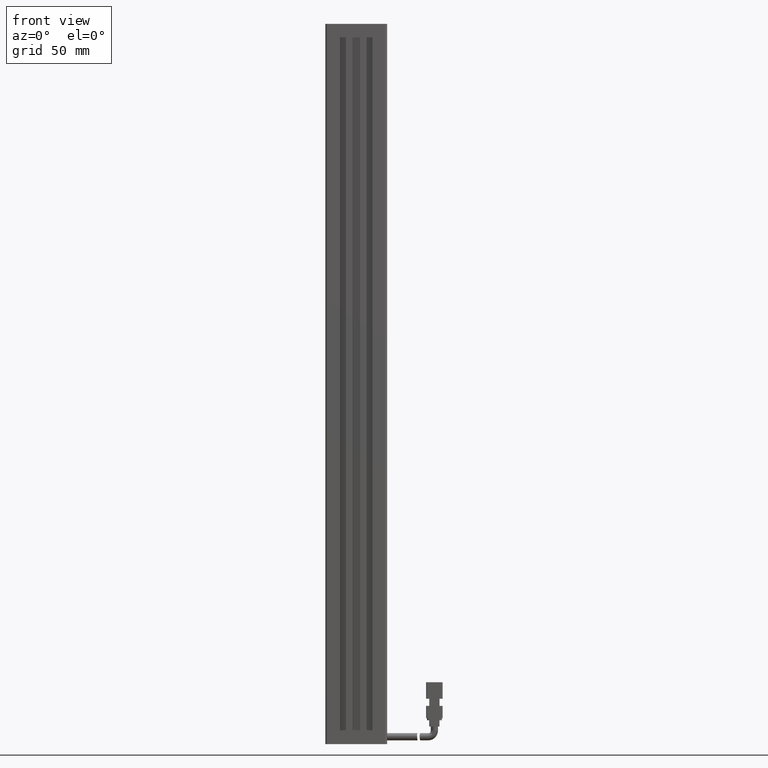
[diagram: clean part render]
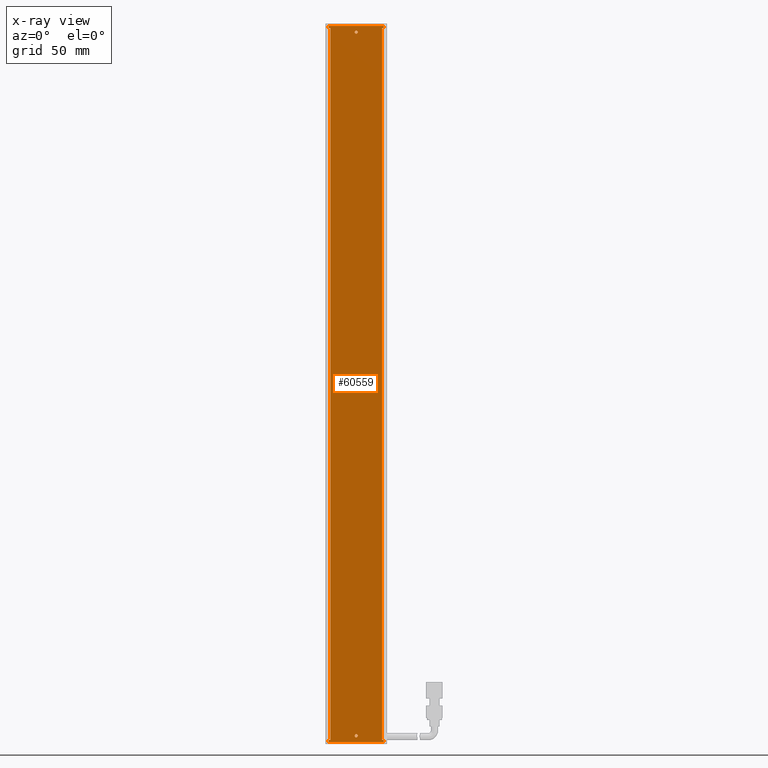
[diagram: x-ray — body ghosted, one internal face saturated and labeled with its STEP entity id]
A machine part, front view, then the same camera in x-ray: the body is ghosted and one INTERNAL B-rep face — a face not visible from any outside direction — is saturated and labeled: STEP entity #60559.
In plain terms, the highlighted planar face has unit normal (-0, 1, 0).
Its self-contained STEP definition (entity closure, byte-faithful):
#108 = AXIS2_PLACEMENT_3D ( 'NONE', #62833, #31655, #367 ) ;
#326 = EDGE_CURVE ( 'NONE', #44605, #55246, #21286, .T. ) ;
#365 = EDGE_CURVE ( 'NONE', #682, #49023, #63641, .T. ) ;
#367 = DIRECTION ( 'NONE',  ( 0.0000000000000000000, 0.0000000000000000000, 1.000000000000000000 ) ) ;
#425 = FACE_BOUND ( 'NONE', #21921, .T. ) ;
#682 = VERTEX_POINT ( 'NONE', #56365 ) ;
#1080 = EDGE_CURVE ( 'NONE', #682, #27360, #6263, .T. ) ;
#2448 = CARTESIAN_POINT ( 'NONE',  ( 40.92537974683542500, 32.19594479660386800, -288.0000000000000600 ) ) ;
#3001 = ORIENTED_EDGE ( 'NONE', *, *, #50860, .F. ) ;
#3261 = CARTESIAN_POINT ( 'NONE',  ( 40.92537974683541800, 32.19594479660386100, 56.00000000000005000 ) ) ;
#4709 = DIRECTION ( 'NONE',  ( -1.000000000000000000, -0.0000000000000000000, 0.0000000000000000000 ) ) ;
#5393 = CARTESIAN_POINT ( 'NONE',  ( 27.52537974683538000, 32.19594479660386100, 59.00000000000005000 ) ) ;
#6263 = LINE ( 'NONE', #7124, #32367 ) ;
#7115 = CIRCLE ( 'NONE', #28818, 0.7499999999999729100 ) ;
#7124 = CARTESIAN_POINT ( 'NONE',  ( 27.52537974683538000, 32.19594479660386100, 59.00000000000005000 ) ) ;
#7812 = DIRECTION ( 'NONE',  ( -0.0000000000000000000, -1.000000000000000000, -0.0000000000000000000 ) ) ;
#8419 = VERTEX_POINT ( 'NONE', #48173 ) ;
#8422 = DIRECTION ( 'NONE',  ( 1.000000000000000000, 0.0000000000000000000, -0.0000000000000000000 ) ) ;
#8490 = ORIENTED_EDGE ( 'NONE', *, *, #47933, .T. ) ;
#8548 = DIRECTION ( 'NONE',  ( 0.0000000000000000000, 0.0000000000000000000, 1.000000000000000000 ) ) ;
#9418 = EDGE_CURVE ( 'NONE', #11055, #67459, #51236, .T. ) ;
#9602 = VECTOR ( 'NONE', #19851, 1000.000000000000000 ) ;
#9888 = LINE ( 'NONE', #43370, #61997 ) ;
#10474 = CARTESIAN_POINT ( 'NONE',  ( 28.42537974683542100, 32.19594479660386800, -288.0000000000000600 ) ) ;
#10705 = DIRECTION ( 'NONE',  ( -1.000000000000000000, -0.0000000000000000000, 5.551115123125781500E-017 ) ) ;
#11055 = VERTEX_POINT ( 'NONE', #22298 ) ;
#11160 = EDGE_CURVE ( 'NONE', #49023, #17031, #58791, .T. ) ;
#13914 = AXIS2_PLACEMENT_3D ( 'NONE', #50061, #18892, #55287 ) ;
#14139 = ORIENTED_EDGE ( 'NONE', *, *, #365, .T. ) ;
#14659 = CARTESIAN_POINT ( 'NONE',  ( 54.32537974683541600, 32.19594479660386100, 59.00000000000005000 ) ) ;
#16041 = EDGE_CURVE ( 'NONE', #29607, #54694, #65655, .T. ) ;
#17031 = VERTEX_POINT ( 'NONE', #10474 ) ;
#17321 = ORIENTED_EDGE ( 'NONE', *, *, #11160, .T. ) ;
#18730 = CARTESIAN_POINT ( 'NONE',  ( 27.52537974683541200, 32.19594479660386100, 59.00000000000005000 ) ) ;
#18892 = DIRECTION ( 'NONE',  ( -0.0000000000000000000, 1.000000000000000000, 0.0000000000000000000 ) ) ;
#19307 = EDGE_CURVE ( 'NONE', #51924, #33954, #23669, .T. ) ;
#19811 = ORIENTED_EDGE ( 'NONE', *, *, #43852, .F. ) ;
#19851 = DIRECTION ( 'NONE',  ( -5.551115123125781500E-017, -0.0000000000000000000, -1.000000000000000000 ) ) ;
#21286 = LINE ( 'NONE', #2448, #35150 ) ;
#21921 = EDGE_LOOP ( 'NONE', ( #23378, #56547 ) ) ;
#22284 = CARTESIAN_POINT ( 'NONE',  ( 54.32537974683541600, 32.19594479660386100, 59.00000000000005000 ) ) ;
#22298 = CARTESIAN_POINT ( 'NONE',  ( 54.32537974683537400, 32.19594479660386100, -289.0000000000000000 ) ) ;
#22405 = CARTESIAN_POINT ( 'NONE',  ( 40.92537974683536100, 32.19594479660386100, -286.0000000000000000 ) ) ;
#22495 = VECTOR ( 'NONE', #27533, 1000.000000000000000 ) ;
#23095 = EDGE_CURVE ( 'NONE', #27360, #29607, #35130, .T. ) ;
#23219 = CARTESIAN_POINT ( 'NONE',  ( 27.52537974683535900, 32.19594479660386800, -288.0000000000000600 ) ) ;
#23378 = ORIENTED_EDGE ( 'NONE', *, *, #61960, .F. ) ;
#23478 = CARTESIAN_POINT ( 'NONE',  ( 54.32537974683540200, 32.19594479660386100, -288.0000000000000600 ) ) ;
#23669 = CIRCLE ( 'NONE', #63718, 0.7500000000000006700 ) ;
#24155 = AXIS2_PLACEMENT_3D ( 'NONE', #3261, #39820, #8548 ) ;
#24616 = LINE ( 'NONE', #35950, #52302 ) ;
#24914 = EDGE_CURVE ( 'NONE', #55246, #11055, #52790, .T. ) ;
#25472 = EDGE_CURVE ( 'NONE', #67459, #62691, #45232, .T. ) ;
#25476 = ORIENTED_EDGE ( 'NONE', *, *, #25472, .F. ) ;
#25525 = CARTESIAN_POINT ( 'NONE',  ( 53.42537974683542500, 32.19594479660386100, -288.0000000000000600 ) ) ;
#26390 = DIRECTION ( 'NONE',  ( 5.551115123125781500E-017, 0.0000000000000000000, 1.000000000000000000 ) ) ;
#26512 = ORIENTED_EDGE ( 'NONE', *, *, #46789, .T. ) ;
#26975 = EDGE_LOOP ( 'NONE', ( #44153, #19811 ) ) ;
#27360 = VERTEX_POINT ( 'NONE', #18730 ) ;
#27533 = DIRECTION ( 'NONE',  ( -5.551115123125781500E-017, -0.0000000000000000000, -1.000000000000000000 ) ) ;
#27658 = DIRECTION ( 'NONE',  ( 0.0000000000000000000, 0.0000000000000000000, 1.000000000000000000 ) ) ;
#27768 = CARTESIAN_POINT ( 'NONE',  ( 40.92537974683541800, 32.19594479660386100, 55.25000000000005000 ) ) ;
#28218 = FACE_OUTER_BOUND ( 'NONE', #50007, .T. ) ;
#28408 = DIRECTION ( 'NONE',  ( -0.0000000000000000000, -0.0000000000000000000, -1.000000000000000000 ) ) ;
#28818 = AXIS2_PLACEMENT_3D ( 'NONE', #22405, #58790, #27658 ) ;
#29607 = VERTEX_POINT ( 'NONE', #39203 ) ;
#31317 = DIRECTION ( 'NONE',  ( 1.000000000000000000, -0.0000000000000000000, 0.0000000000000000000 ) ) ;
#31357 = VECTOR ( 'NONE', #26390, 1000.000000000000000 ) ;
#31655 = DIRECTION ( 'NONE',  ( -0.0000000000000000000, -1.000000000000000000, -0.0000000000000000000 ) ) ;
#32367 = VECTOR ( 'NONE', #38403, 1000.000000000000000 ) ;
#33155 = ORIENTED_EDGE ( 'NONE', *, *, #1080, .F. ) ;
#33701 = DIRECTION ( 'NONE',  ( 1.000000000000000000, 0.0000000000000000000, 0.0000000000000000000 ) ) ;
#33954 = VERTEX_POINT ( 'NONE', #27768 ) ;
#34780 = VERTEX_POINT ( 'NONE', #52002 ) ;
#35130 = LINE ( 'NONE', #65361, #45736 ) ;
#35150 = VECTOR ( 'NONE', #33701, 1000.000000000000000 ) ;
#35950 = CARTESIAN_POINT ( 'NONE',  ( 40.92537974683542500, 32.19594479660386800, -288.0000000000000600 ) ) ;
#36068 = VERTEX_POINT ( 'NONE', #43678 ) ;
#36419 = ORIENTED_EDGE ( 'NONE', *, *, #16041, .F. ) ;
#37251 = VECTOR ( 'NONE', #31317, 1000.000000000000000 ) ;
#37432 = VECTOR ( 'NONE', #10705, 1000.000000000000000 ) ;
#38403 = DIRECTION ( 'NONE',  ( 5.551115123125781500E-017, 0.0000000000000000000, 1.000000000000000000 ) ) ;
#39096 = CARTESIAN_POINT ( 'NONE',  ( 40.92537974683541800, 32.19594479660386100, 56.00000000000005000 ) ) ;
#39203 = CARTESIAN_POINT ( 'NONE',  ( 54.32537974683541600, 32.19594479660386100, 59.00000000000005000 ) ) ;
#39700 = CARTESIAN_POINT ( 'NONE',  ( 40.92537974683542500, 32.19594479660386800, 58.00000000000000700 ) ) ;
#39791 = CARTESIAN_POINT ( 'NONE',  ( 54.32537974683541600, 32.19594479660386100, 58.00000000000000700 ) ) ;
#39820 = DIRECTION ( 'NONE',  ( -0.0000000000000000000, -1.000000000000000000, -0.0000000000000000000 ) ) ;
#41616 = CARTESIAN_POINT ( 'NONE',  ( 25.92537974683541800, 32.19594479660386100, 58.00000000000000700 ) ) ;
#42503 = VECTOR ( 'NONE', #8422, 1000.000000000000000 ) ;
#43370 = CARTESIAN_POINT ( 'NONE',  ( 53.42537974683542500, 32.19594479660386800, 60.00000000000001400 ) ) ;
#43678 = CARTESIAN_POINT ( 'NONE',  ( 53.42537974683542500, 32.19594479660386800, 58.00000000000000700 ) ) ;
#43852 = EDGE_CURVE ( 'NONE', #33954, #51924, #51820, .T. ) ;
#44153 = ORIENTED_EDGE ( 'NONE', *, *, #19307, .F. ) ;
#44288 = DIRECTION ( 'NONE',  ( 0.0000000000000000000, 0.0000000000000000000, 1.000000000000000000 ) ) ;
#44605 = VERTEX_POINT ( 'NONE', #25525 ) ;
#44675 = DIRECTION ( 'NONE',  ( 1.000000000000000000, 0.0000000000000000000, -5.551115123125781500E-017 ) ) ;
#44829 = CIRCLE ( 'NONE', #108, 0.7499999999999729100 ) ;
#45232 = LINE ( 'NONE', #5393, #31357 ) ;
#45736 = VECTOR ( 'NONE', #44675, 1000.000000000000000 ) ;
#46052 = CARTESIAN_POINT ( 'NONE',  ( 27.52537974683535900, 32.19594479660386100, -289.0000000000000000 ) ) ;
#46789 = EDGE_CURVE ( 'NONE', #36068, #54694, #51074, .T. ) ;
#46912 = ORIENTED_EDGE ( 'NONE', *, *, #23095, .F. ) ;
#47933 = EDGE_CURVE ( 'NONE', #17031, #62691, #24616, .T. ) ;
#48173 = CARTESIAN_POINT ( 'NONE',  ( 40.92537974683536100, 32.19594479660386100, -285.2500000000000000 ) ) ;
#49023 = VERTEX_POINT ( 'NONE', #57436 ) ;
#50007 = EDGE_LOOP ( 'NONE', ( #65463, #3001, #26512, #36419, #46912, #33155, #14139, #17321, #8490, #25476, #58053, #63203 ) ) ;
#50061 = CARTESIAN_POINT ( 'NONE',  ( 54.32537974683541600, 32.19594479660386100, 59.00000000000005000 ) ) ;
#50860 = EDGE_CURVE ( 'NONE', #36068, #44605, #9888, .T. ) ;
#51074 = LINE ( 'NONE', #41616, #37251 ) ;
#51236 = LINE ( 'NONE', #52125, #37432 ) ;
#51820 = CIRCLE ( 'NONE', #24155, 0.7500000000000006700 ) ;
#51924 = VERTEX_POINT ( 'NONE', #59834 ) ;
#52002 = CARTESIAN_POINT ( 'NONE',  ( 40.92537974683536100, 32.19594479660386100, -286.7499999999999400 ) ) ;
#52125 = CARTESIAN_POINT ( 'NONE',  ( 54.32537974683540900, 32.19594479660386100, -289.0000000000000000 ) ) ;
#52302 = VECTOR ( 'NONE', #4709, 1000.000000000000000 ) ;
#52790 = LINE ( 'NONE', #14659, #9602 ) ;
#54264 = FACE_BOUND ( 'NONE', #26975, .T. ) ;
#54367 = CARTESIAN_POINT ( 'NONE',  ( 28.42537974683542100, 32.19594479660386800, 60.00000000000001400 ) ) ;
#54694 = VERTEX_POINT ( 'NONE', #39791 ) ;
#55066 = PLANE ( 'NONE',  #13914 ) ;
#55246 = VERTEX_POINT ( 'NONE', #23478 ) ;
#55287 = DIRECTION ( 'NONE',  ( 5.551115123125781500E-017, 0.0000000000000000000, 1.000000000000000000 ) ) ;
#56365 = CARTESIAN_POINT ( 'NONE',  ( 27.52537974683535900, 32.19594479660386800, 58.00000000000000700 ) ) ;
#56547 = ORIENTED_EDGE ( 'NONE', *, *, #58918, .F. ) ;
#57162 = VECTOR ( 'NONE', #28408, 1000.000000000000000 ) ;
#57436 = CARTESIAN_POINT ( 'NONE',  ( 28.42537974683542100, 32.19594479660386100, 58.00000000000000700 ) ) ;
#58053 = ORIENTED_EDGE ( 'NONE', *, *, #9418, .F. ) ;
#58790 = DIRECTION ( 'NONE',  ( -0.0000000000000000000, -1.000000000000000000, -0.0000000000000000000 ) ) ;
#58791 = LINE ( 'NONE', #54367, #57162 ) ;
#58918 = EDGE_CURVE ( 'NONE', #34780, #8419, #44829, .T. ) ;
#59023 = DIRECTION ( 'NONE',  ( -0.0000000000000000000, -0.0000000000000000000, -1.000000000000000000 ) ) ;
#59834 = CARTESIAN_POINT ( 'NONE',  ( 40.92537974683541800, 32.19594479660386100, 56.75000000000005000 ) ) ;
#60559 = ADVANCED_FACE ( 'NONE', ( #28218, #54264, #425 ), #55066, .F. ) ;
#61960 = EDGE_CURVE ( 'NONE', #8419, #34780, #7115, .T. ) ;
#61997 = VECTOR ( 'NONE', #59023, 1000.000000000000000 ) ;
#62691 = VERTEX_POINT ( 'NONE', #23219 ) ;
#62833 = CARTESIAN_POINT ( 'NONE',  ( 40.92537974683536100, 32.19594479660386100, -286.0000000000000000 ) ) ;
#63203 = ORIENTED_EDGE ( 'NONE', *, *, #24914, .F. ) ;
#63641 = LINE ( 'NONE', #39700, #42503 ) ;
#63718 = AXIS2_PLACEMENT_3D ( 'NONE', #39096, #7812, #44288 ) ;
#65361 = CARTESIAN_POINT ( 'NONE',  ( 54.32537974683541600, 32.19594479660386100, 59.00000000000005000 ) ) ;
#65463 = ORIENTED_EDGE ( 'NONE', *, *, #326, .F. ) ;
#65655 = LINE ( 'NONE', #22284, #22495 ) ;
#67459 = VERTEX_POINT ( 'NONE', #46052 ) ;